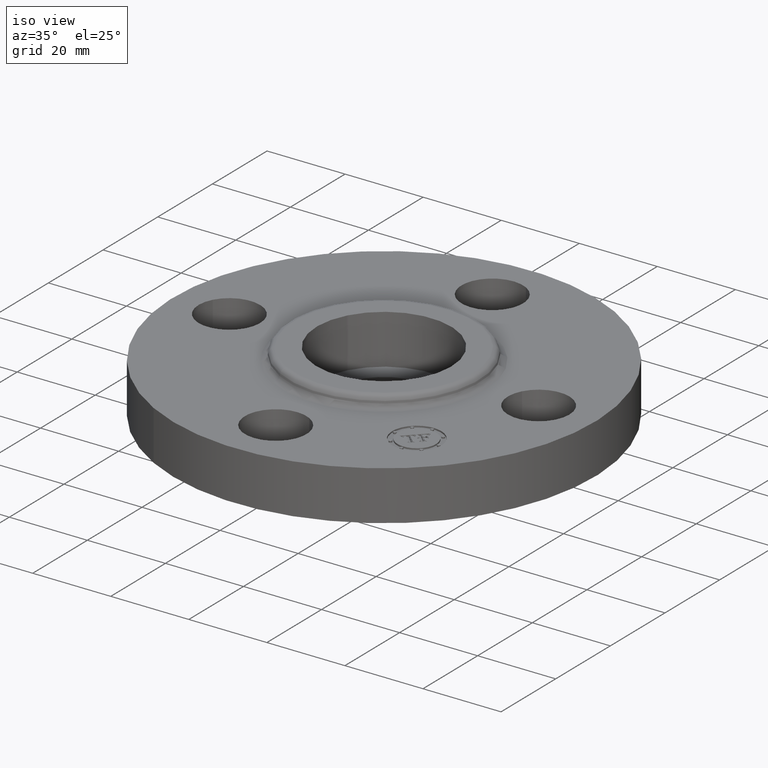
[diagram: clean part render]
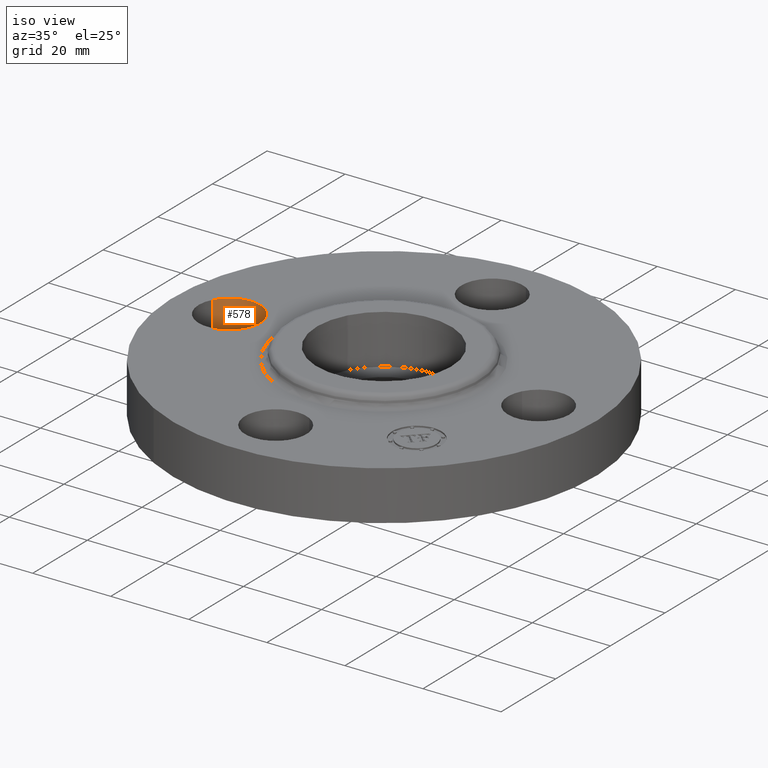
[diagram: same view with one face highlighted and labeled with its STEP entity id]
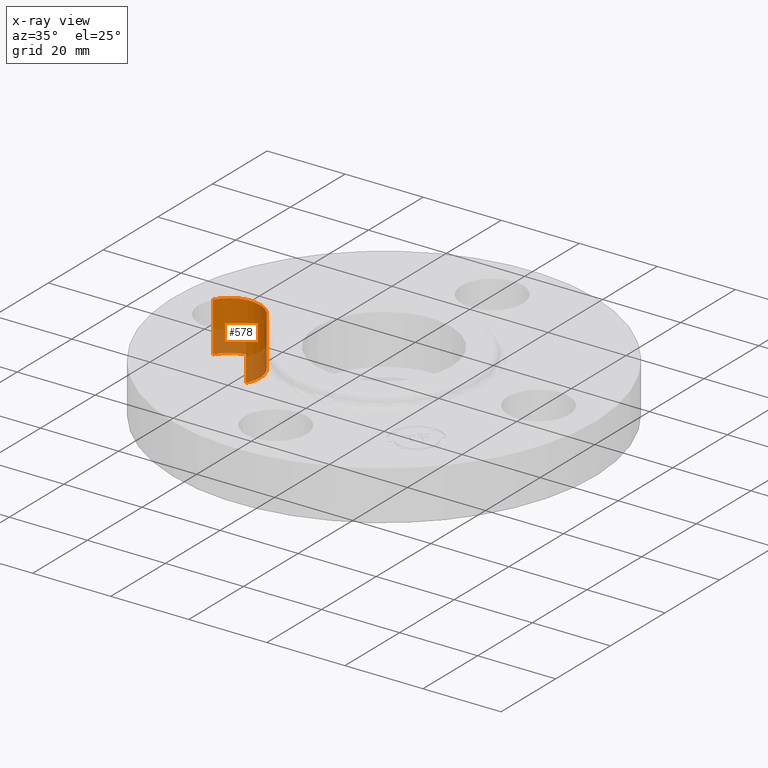
[diagram: x-ray of the same camera — body ghosted, the highlighted face saturated]
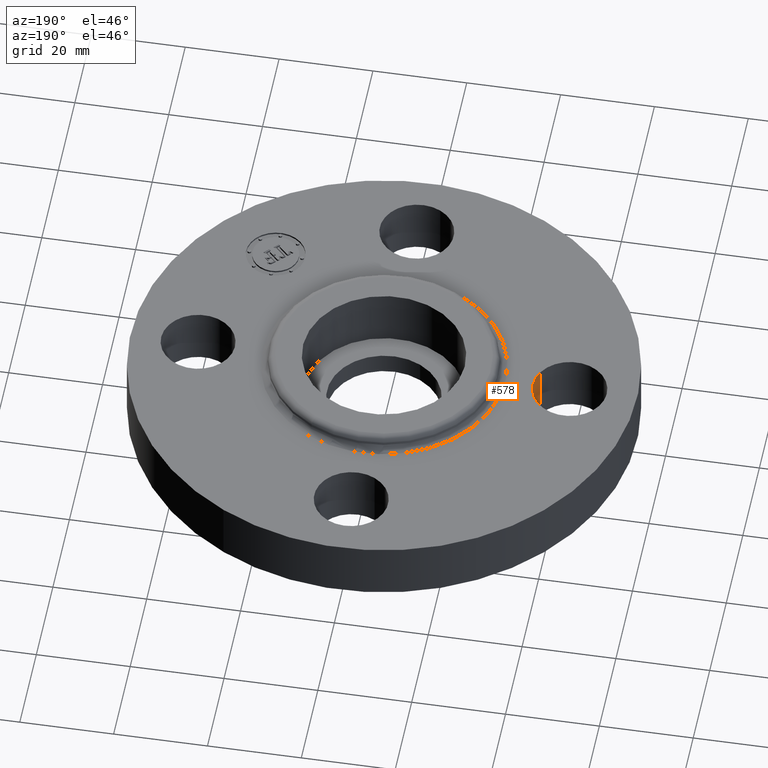
[diagram: same view with one face highlighted and labeled with its STEP entity id]
A machine part, iso view. The second image highlights one B-rep face of the part: STEP entity #578.
The next image is the same camera in x-ray: the body ghosted, the highlighted face saturated — about 40% of this face is hidden behind the body in this view.
A second angle (auxiliary view) of the same face is appended — the face is thin or edge-on in the first view.
In plain terms, the highlighted cylindrical surface (partial cylindrical patch) has radius 7.874 mm, axis along (-0, 0, -1).
Its self-contained STEP definition (entity closure, byte-faithful):
#265=AXIS2_PLACEMENT_3D('Circle Axis2P3D',#263,#264,$) ;
#551=AXIS2_PLACEMENT_3D('Cylinder Axis2P3D',#548,#549,#550) ;
#569=AXIS2_PLACEMENT_3D('Circle Axis2P3D',#567,#568,$) ;
#258=CARTESIAN_POINT('Vertex',(-1.28794940582,-0.148621916968,0.)) ;
#260=CARTESIAN_POINT('Vertex',(-1.83205059419,0.148621916968,0.)) ;
#263=CARTESIAN_POINT('Axis2P3D Location',(-1.56000000001,-1.39870617276E-016,0.)) ;
#548=CARTESIAN_POINT('Axis2P3D Location',(-1.56000000001,-1.91044900668E-016,0.496062992128)) ;
#553=CARTESIAN_POINT('Line Origine',(-1.83205059419,0.148621916968,0.250000000001)) ;
#557=CARTESIAN_POINT('Vertex',(-1.83205059419,0.148621916968,0.500000000002)) ;
#560=CARTESIAN_POINT('Line Origine',(-1.28794940582,-0.148621916968,0.250000000001)) ;
#564=CARTESIAN_POINT('Vertex',(-1.28794940582,-0.148621916968,0.500000000002)) ;
#567=CARTESIAN_POINT('Axis2P3D Location',(-1.56000000001,-1.91044900668E-016,0.500000000002)) ;
#264=DIRECTION('Axis2P3D Direction',(0.,0.,-0.0393700787402)) ;
#549=DIRECTION('Axis2P3D Direction',(-0.,0.,-0.0393700787402)) ;
#550=DIRECTION('Axis2P3D XDirection',(0.0345504945626,-0.0188750212049,-0.)) ;
#554=DIRECTION('Vector Direction',(0.,0.,-0.0393700787402)) ;
#561=DIRECTION('Vector Direction',(0.,0.,-0.0393700787402)) ;
#568=DIRECTION('Axis2P3D Direction',(-0.,0.,-0.0393700787402)) ;
#555=VECTOR('Line Direction',#554,0.0393700787402) ;
#562=VECTOR('Line Direction',#561,0.0393700787402) ;
#573=ORIENTED_EDGE('',*,*,#559,.F.) ;
#574=ORIENTED_EDGE('',*,*,#267,.T.) ;
#575=ORIENTED_EDGE('',*,*,#566,.T.) ;
#576=ORIENTED_EDGE('',*,*,#571,.F.) ;
#578=ADVANCED_FACE('PartBody',(#577),#552,.F.) ;
#266=CIRCLE('generated circle',#265,0.310000000001) ;
#570=CIRCLE('generated circle',#569,0.310000000001) ;
#552=CYLINDRICAL_SURFACE('generated cylinder',#551,0.310000000001) ;
#267=EDGE_CURVE('',#261,#259,#266,.T.) ;
#559=EDGE_CURVE('',#261,#558,#556,.F.) ;
#566=EDGE_CURVE('',#259,#565,#563,.F.) ;
#571=EDGE_CURVE('',#558,#565,#570,.T.) ;
#572=EDGE_LOOP('',(#573,#574,#575,#576)) ;
#577=FACE_OUTER_BOUND('',#572,.T.) ;
#556=LINE('Line',#553,#555) ;
#563=LINE('Line',#560,#562) ;
#259=VERTEX_POINT('',#258) ;
#261=VERTEX_POINT('',#260) ;
#558=VERTEX_POINT('',#557) ;
#565=VERTEX_POINT('',#564) ;